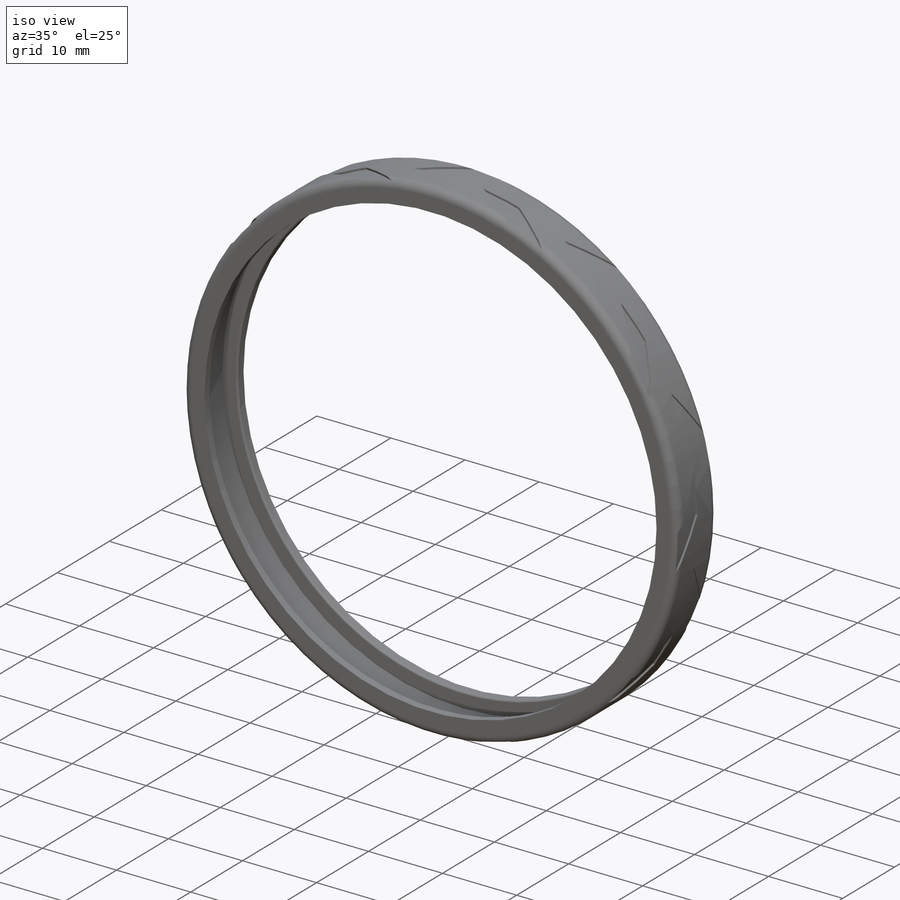
[diagram: iso view]
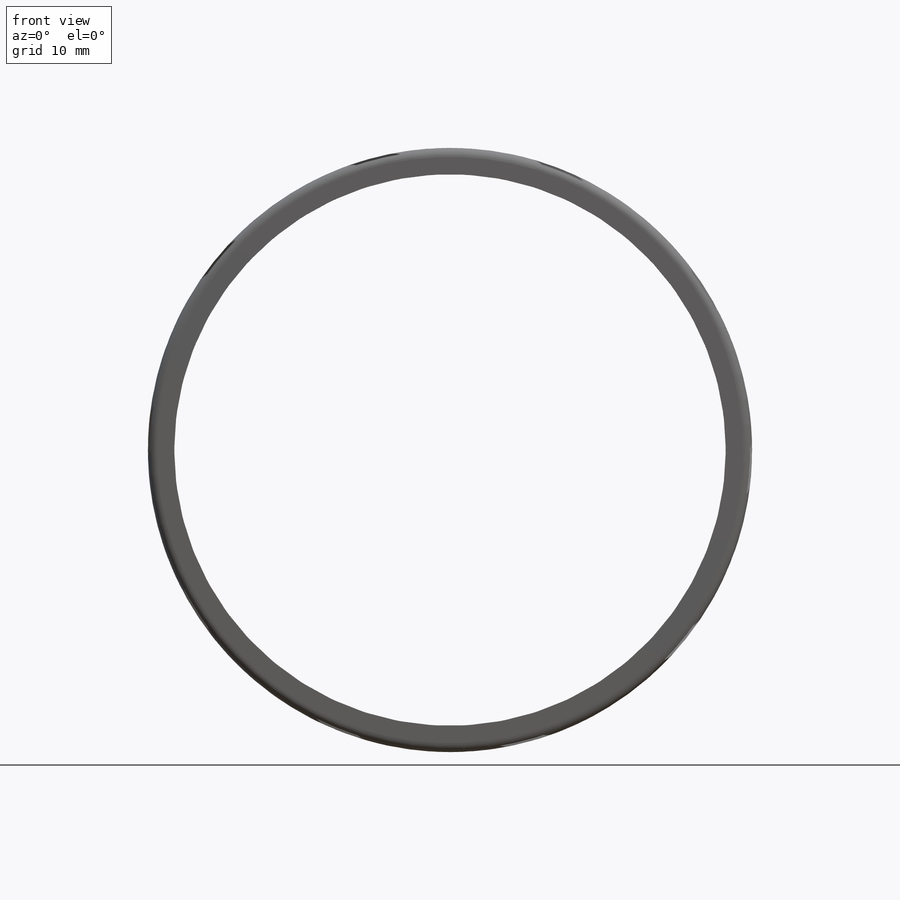
[diagram: front view]
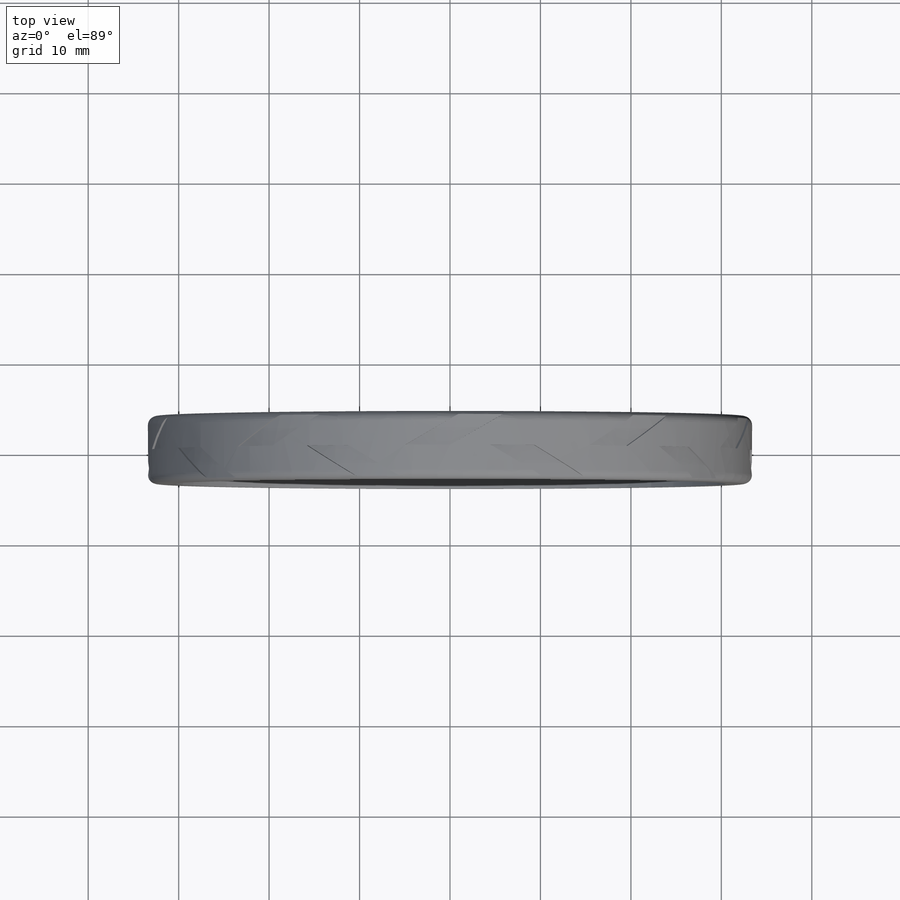
[diagram: top view]
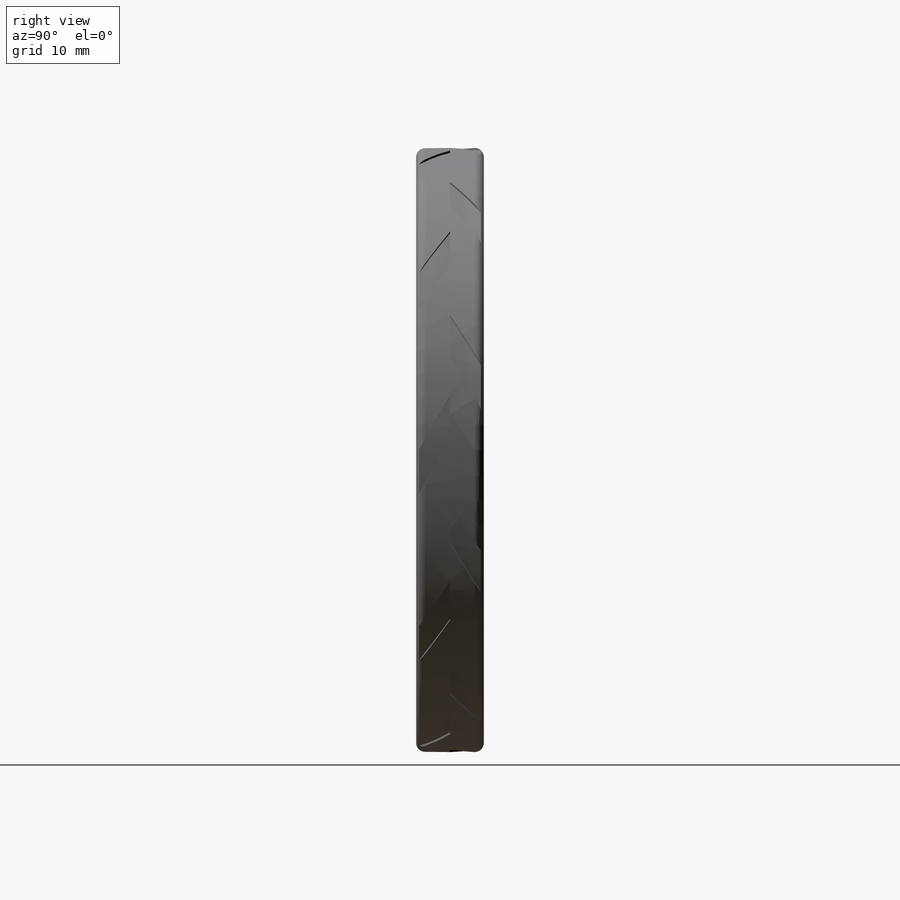
[diagram: right view]
SOLIDWORKS PART (.sldprt)
format: sldprt  version: not decoded by parser v0  size: 699,904 bytes
history: native  units: mm
features: sketch x2, fillet x2, material x1, revolve x1, plane x1, pattern_circular x1 (+16 scaffold rows collapsed)
feature tree (24):
  scaffold x16  (default folders/planes/origin — collapsed)
  material  "Rubber"
  sketch  "Sketch1"  dims[D1=50.0mm D2=33.4mm D3=2.9mm D4=7.5mm D5=3.75mm D6=5.1mm D7=2.55mm D8=2.0mm]
  revolve  "Revolve1"  Angle=360deg
  fillet  "Fillet2"  Radius=0.25mm
  plane  "Plane1"  Offset=40mm
  sketch  "Sketch2"  dims[c1.D1=5.62mm c1.D2=2.81mm c1.D3=~408.407045mm c1.D4=~204.203522mm c1.D5=~4.840653mm c2.D5=60.0deg c2.D6=1.5mm c2.D7=5.62mm c3.D7=60.0deg c3.D8=2.81mm c4.D8=~1.64279deg c5.D8=1.5mm c5.D2=~408.407045mm c5.D3=~204.203522mm c5.D1=~5.701319mm c6.D1=150.0deg c6.D2=2.5mm c6.D3=~10.018117mm c7.D3=150.0deg c7.D4=2.5mm c7.D1=0.25mm]
  pattern_circular  "CirPattern1"  Count=10 Angle=360deg
  fillet  "Fillet3"  Radius=1mm
decode coverage: 6 of 6 modeling features carry decoded parameters
note: ~ marks probable driven/reference dimensions
note: suppression state not decoded; provenance and decode notes live in map.json
